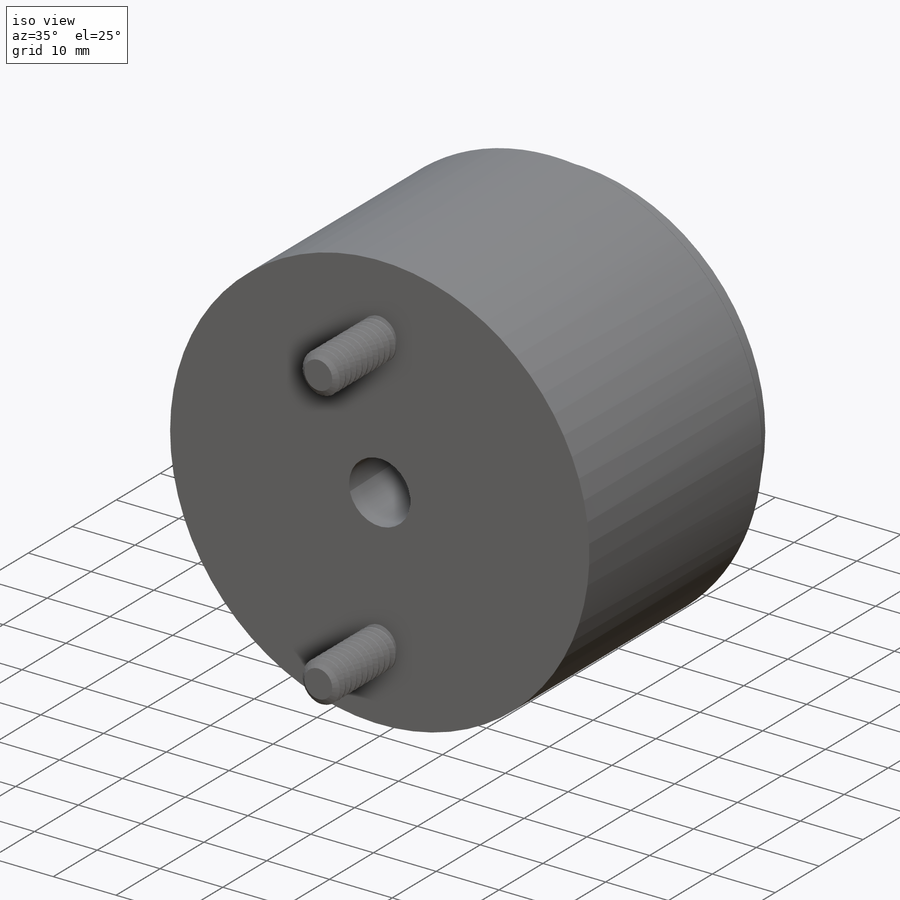
[diagram: iso view]
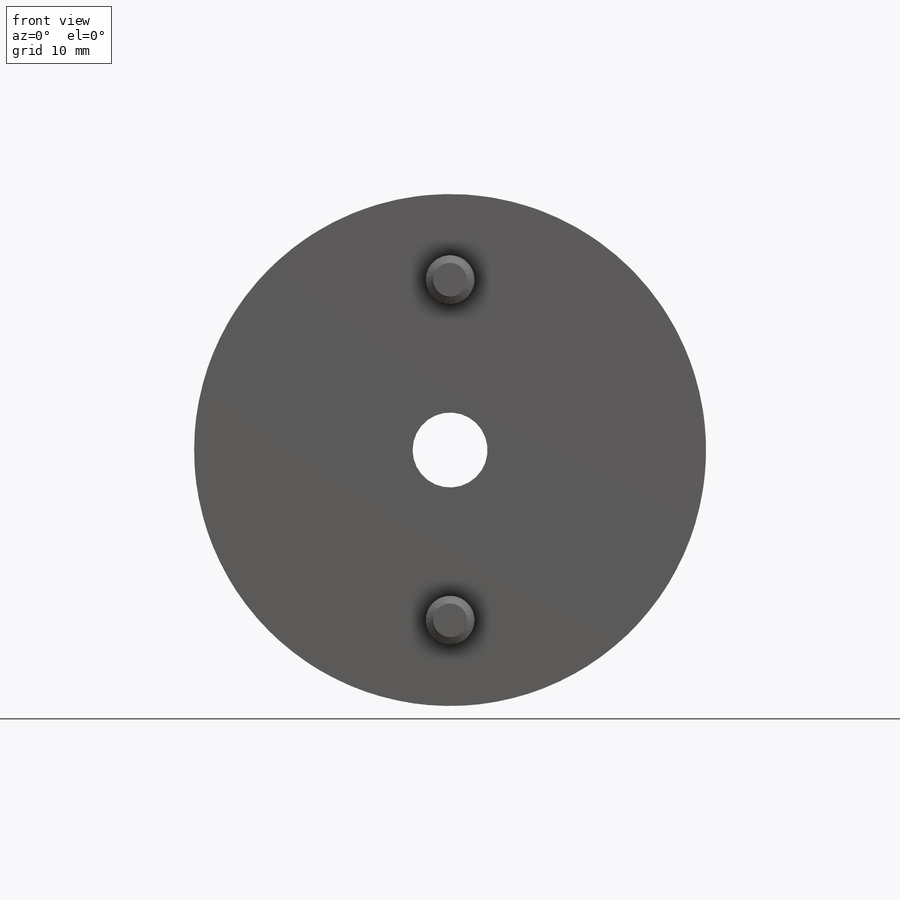
[diagram: front view]
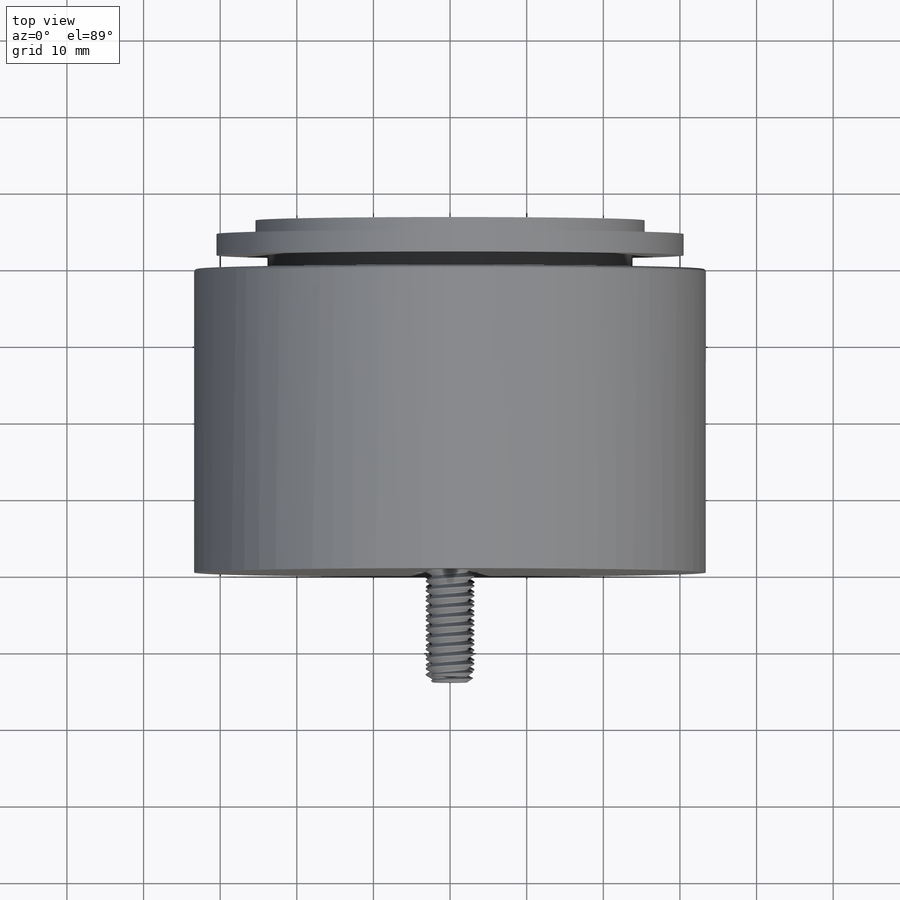
[diagram: top view]
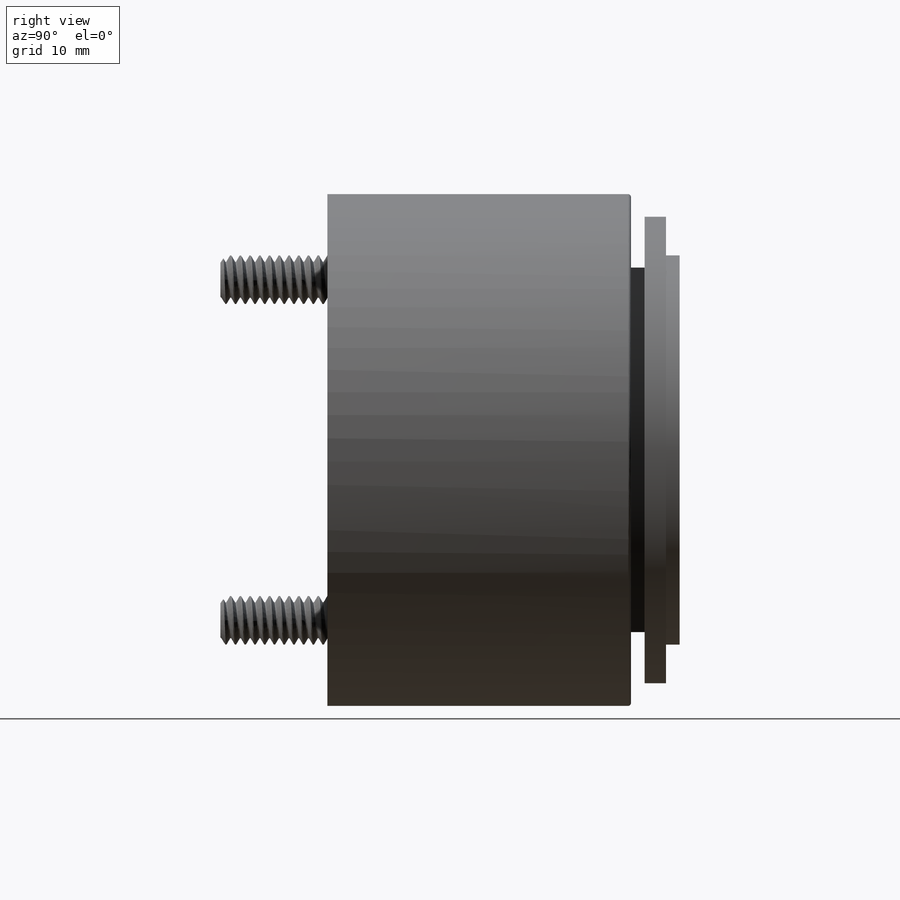
[diagram: right view]
SOLIDWORKS PART (.sldprt)
format: sldprt  version: not decoded by parser v0  size: 2,172,416 bytes
history: native  units: mm
features: sketch x12, revolve x2, helix x2, sweep x2, cut_extrude x2, extrude x2, material x1, pattern_linear x1, boolean_combine x1, move_body x1 (+15 scaffold rows collapsed)
feature tree (41):
  scaffold x15  (default folders/planes/origin — collapsed)
  material  "Material <not specified>"
  sketch  "Sketch0"  dims[c1.Lg.=39.624mm c1.Dia.=66.802mm c1.Rod Dia.=9.525mm c1.A=24.13mm c1.Stud C-C=44.45mm c1.Stroke=12.7mm c1.B=13.462mm c1.Stud Lg.=13.97mm c1.Stud OD=6.35mm c1.OAL=119.38mm c1.D1=7.874mm c1.Thread OD=9.525mm c1.D2=60.96mm c1.D3=13.462mm c1.D4=23.876mm c2.B=49.276mm c2.D3=7.874mm c2.D1=1.778mm c3.D3=4.572mm c3.Thread Length=19.05mm]
  sketch  "Sketch1"  dims[c1.D1=0.381mm c1.D4=0.3175mm c1.D2=0.127mm c1.D3=5.4864mm c2.D4=0.5334mm c2.D5=10.9982mm c2.D6=0.381mm c2.D7=10.3378mm c3.D6=~0.727899mm c3.D4=0.5334mm c4.D6=0.381mm c4.D2=1.778mm c4.D3=6.35mm c4.D4=0.127mm c4.D5=22.352mm c5.D3=47.625mm c5.D5=50.8mm]
  revolve  "Revolve1"  Angle=360deg
  sketch  "Sketch2"  dims[D1=0.254mm]
  revolve  "Revolve2"  Angle=360deg
  sketch  "Sketch3"
  helix  "Helix/Spiral1"  Pitch=20.108333mm
  sketch  "Sketch4"  dims[D1=~1.058333mm D2=~0.132292mm]
  sweep  "Cut-Sweep1"
  sketch  "Sketch5"
  cut_extrude  "Cut-Extrude1"  Depth=3.175mm
  extrude  "Boss-Extrude2"  [1 undecoded]
  sketch  "Sketch3<2>"  dims[D1=~1.058333mm]
  sketch  "Sketch6"
  extrude  "Boss-Extrude1"  [1 undecoded]
  sketch  "Sketch7"  dims[D1=0.0mm]
  helix  "Helix/Spiral2"  Pitch=15.24mm
  sketch  "Sketch8"  dims[D1=1.27mm D2=~0.15875mm]
  sweep  "Cut-Sweep2"
  sketch  "Sketch9"
  cut_extrude  "Cut-Extrude2"  [1 undecoded]
  pattern_linear  "LPattern1"  Count1=2 Count2=1 Spacing1=44.45mm Spacing2=3.175mm
  boolean_combine  "Combine1"
  sketch  "SketchX"
  move_body  "Body-Move/Copy1"
decode coverage: 13 of 25 modeling features carry decoded parameters
note: ~ marks probable driven/reference dimensions
note: 3 parameter values undecoded
summary: no parameter record found for 3 features
note: suppression state not decoded; provenance and decode notes live in map.json
